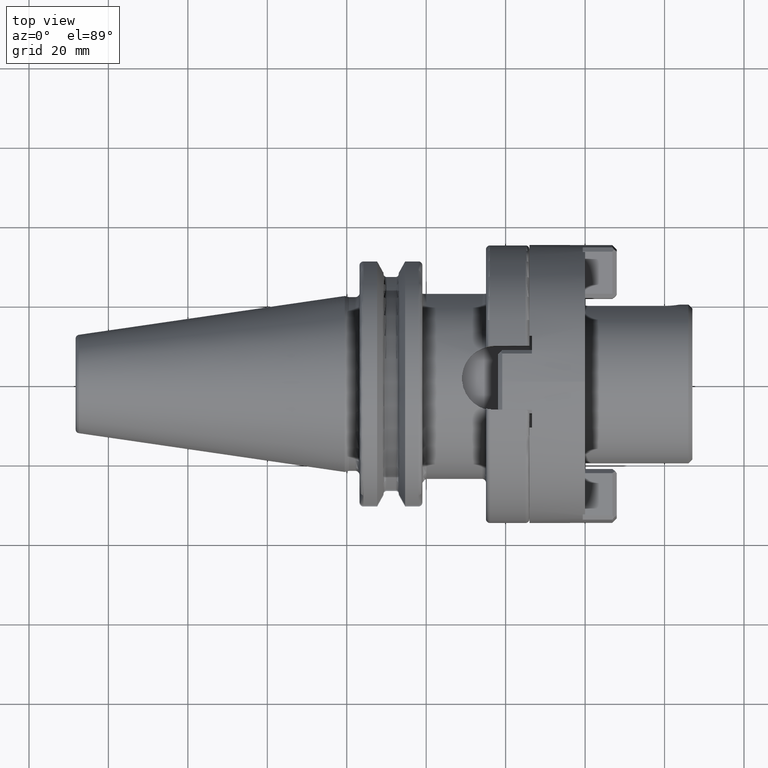
[diagram: clean part render]
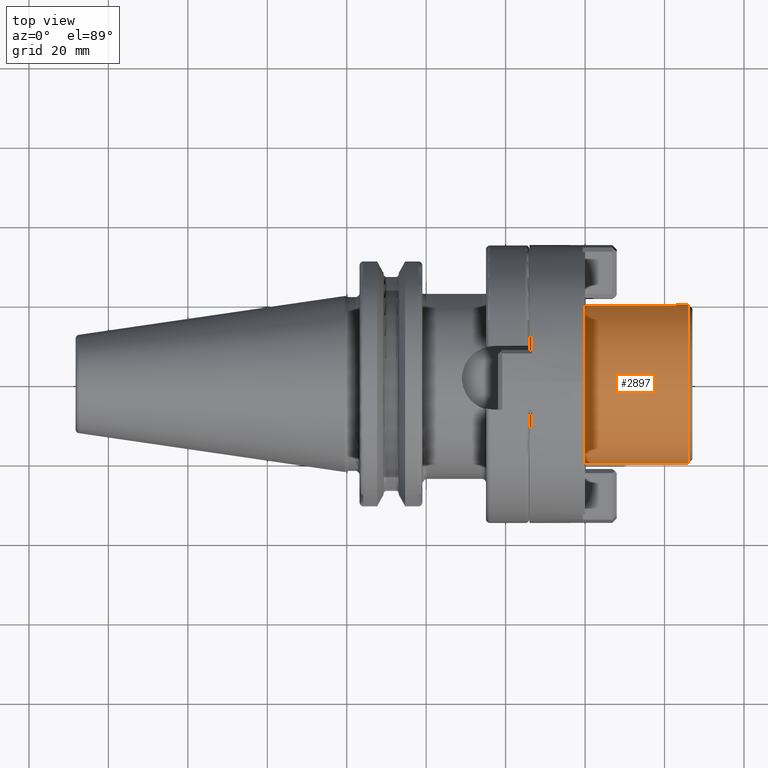
[diagram: same view with one face highlighted and labeled with its STEP entity id]
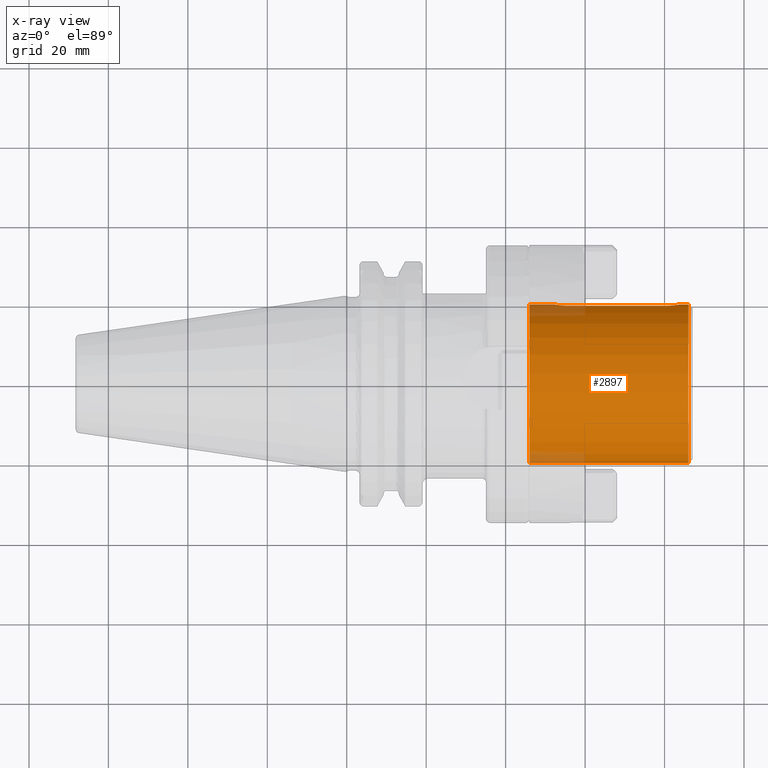
[diagram: x-ray of the same camera — body ghosted, the highlighted face saturated]
A machine part, top view. The second image highlights one B-rep face of the part: STEP entity #2897.
The next image is the same camera in x-ray: the body ghosted, the highlighted face saturated — about 5% of this face is hidden behind the body in this view.
In plain terms, the highlighted cylindrical surface (partial cylindrical patch) has radius 20 mm, axis along (1, 0, 0).
Its self-contained STEP definition (entity closure, byte-faithful):
#676=CARTESIAN_POINT('',(4.6E1,0.E0,0.E0));
#677=DIRECTION('',(1.E0,0.E0,0.E0));
#678=DIRECTION('',(0.E0,1.E0,0.E0));
#679=AXIS2_PLACEMENT_3D('',#676,#677,#678);
#710=CARTESIAN_POINT('',(5.2E1,2.E1,0.E0));
#711=CARTESIAN_POINT('',(5.2E1,2.E1,2.332612092060E-1));
#712=CARTESIAN_POINT('',(5.203969359434E1,1.999199429443E1,6.932150350380E-1));
#713=CARTESIAN_POINT('',(5.222367966138E1,1.995602477411E1,1.380015279400E0));
#714=CARTESIAN_POINT('',(5.251865844221E1,1.990175833422E1,2.010833424175E0));
#715=CARTESIAN_POINT('',(5.292404391083E1,1.983422173433E1,2.588710195262E0));
#716=CARTESIAN_POINT('',(5.341488678905E1,1.976331754903E1,3.078834361057E0));
#717=CARTESIAN_POINT('',(5.399142549837E1,1.969551745097E1,3.482629222908E0));
#718=CARTESIAN_POINT('',(5.462242444950E1,1.964060035928E1,3.776997837250E0));
#719=CARTESIAN_POINT('',(5.530378331717E1,1.960423686747E1,3.959595406031E0));
#720=CARTESIAN_POINT('',(5.576525841308E1,1.959591794227E1,4.E0));
#721=CARTESIAN_POINT('',(5.6E1,1.959591794227E1,4.E0));
#723=DIRECTION('',(1.E0,0.E0,0.E0));
#724=VECTOR('',#723,2.4E1);
#725=CARTESIAN_POINT('',(5.6E1,1.959591794227E1,4.E0));
#726=LINE('',#725,#724);
#727=CARTESIAN_POINT('',(8.E1,1.959591794227E1,4.E0));
#728=CARTESIAN_POINT('',(8.023482019323E1,1.959591794227E1,4.E0));
#729=CARTESIAN_POINT('',(8.069646173838E1,1.960423642681E1,3.959601599604E0));
#730=CARTESIAN_POINT('',(8.137869536913E1,1.964067612774E1,3.776606685910E0));
#731=CARTESIAN_POINT('',(8.200940143610E1,1.969560187580E1,3.482164522748E0));
#732=CARTESIAN_POINT('',(8.258639000230E1,1.976348326237E1,3.077790965165E0));
#733=CARTESIAN_POINT('',(8.307673294187E1,1.983434758689E1,2.587716427516E0));
#734=CARTESIAN_POINT('',(8.348164187550E1,1.990181244784E1,2.010278230871E0));
#735=CARTESIAN_POINT('',(8.377638870792E1,1.995603861698E1,1.379689240196E0));
#736=CARTESIAN_POINT('',(8.396015638509E1,1.999196462113E1,6.939124874021E-1));
#737=CARTESIAN_POINT('',(8.4E1,2.E1,2.335822306915E-1));
#738=CARTESIAN_POINT('',(8.4E1,2.E1,3.144154927359E-14));
#740=CARTESIAN_POINT('',(8.6E1,0.E0,0.E0));
#741=DIRECTION('',(-1.E0,0.E0,0.E0));
#742=DIRECTION('',(0.E0,-1.E0,0.E0));
#743=AXIS2_PLACEMENT_3D('',#740,#741,#742);
#762=DIRECTION('',(-1.E0,0.E0,0.E0));
#763=VECTOR('',#762,6.E0);
#764=CARTESIAN_POINT('',(5.2E1,2.E1,0.E0));
#765=LINE('',#764,#763);
#766=DIRECTION('',(-1.E0,-1.440447761068E-12,-8.509783561617E-12));
#767=VECTOR('',#766,4.000000000006E1);
#768=CARTESIAN_POINT('',(8.600000000006E1,-1.999999999994E1,
3.403897096028E-10));
#769=LINE('',#768,#767);
#775=DIRECTION('',(-1.E0,2.880895522056E-11,1.702097715098E-10));
#776=VECTOR('',#775,2.000000000058E0);
#777=CARTESIAN_POINT('',(8.600000000006E1,1.999999999994E1,
-3.403881014801E-10));
#778=LINE('',#777,#776);
#2038=CARTESIAN_POINT('',(4.6E1,2.E1,0.E0));
#2039=CARTESIAN_POINT('',(4.6E1,-2.E1,0.E0));
#2040=VERTEX_POINT('',#2038);
#2041=VERTEX_POINT('',#2039);
#2042=CARTESIAN_POINT('',(8.6E1,2.E1,0.E0));
#2043=CARTESIAN_POINT('',(8.6E1,-2.E1,0.E0));
#2044=VERTEX_POINT('',#2042);
#2045=VERTEX_POINT('',#2043);
#2086=VERTEX_POINT('',#710);
#2087=VERTEX_POINT('',#721);
#2088=CARTESIAN_POINT('',(8.E1,1.959591794227E1,4.E0));
#2089=VERTEX_POINT('',#2088);
#2090=VERTEX_POINT('',#738);
#2875=CARTESIAN_POINT('',(1.56525E1,0.E0,0.E0));
#2876=DIRECTION('',(1.E0,0.E0,0.E0));
#2877=DIRECTION('',(0.E0,-1.E0,0.E0));
#2878=AXIS2_PLACEMENT_3D('',#2875,#2876,#2877);
#2879=CYLINDRICAL_SURFACE('',#2878,2.E1);
#2881=ORIENTED_EDGE('',*,*,#2880,.T.);
#2883=ORIENTED_EDGE('',*,*,#2882,.T.);
#2885=ORIENTED_EDGE('',*,*,#2884,.T.);
#2887=ORIENTED_EDGE('',*,*,#2886,.F.);
#2889=ORIENTED_EDGE('',*,*,#2888,.F.);
#2891=ORIENTED_EDGE('',*,*,#2890,.T.);
#2892=ORIENTED_EDGE('',*,*,#2868,.F.);
#2894=ORIENTED_EDGE('',*,*,#2893,.F.);
#2895=EDGE_LOOP('',(#2881,#2883,#2885,#2887,#2889,#2891,#2892,#2894));
#2896=FACE_OUTER_BOUND('',#2895,.F.);
#2897=ADVANCED_FACE('',(#2896),#2879,.T.);
#680=CIRCLE('',#679,2.E1);
#722=B_SPLINE_CURVE_WITH_KNOTS('',3,(#710,#711,#712,#713,#714,#715,#716,#717,
#718,#719,#720,#721),.UNSPECIFIED.,.F.,.F.,(4,1,1,1,1,1,1,1,1,4),(0.E0,
1.111111111111E-1,2.222222222222E-1,3.333333333333E-1,4.444444444444E-1,
5.555555555556E-1,6.666666666667E-1,7.777777777778E-1,8.888888888889E-1,1.E0),
.UNSPECIFIED.);
#739=B_SPLINE_CURVE_WITH_KNOTS('',3,(#727,#728,#729,#730,#731,#732,#733,#734,
#735,#736,#737,#738),.UNSPECIFIED.,.F.,.F.,(4,1,1,1,1,1,1,1,1,4),(0.E0,
1.111111111111E-1,2.222222222222E-1,3.333333333333E-1,4.444444444444E-1,
5.555555555556E-1,6.666666666667E-1,7.777777777778E-1,8.888888888889E-1,1.E0),
.UNSPECIFIED.);
#744=CIRCLE('',#743,2.E1);
#2868=EDGE_CURVE('',#2040,#2041,#680,.T.);
#2880=EDGE_CURVE('',#2086,#2087,#722,.T.);
#2882=EDGE_CURVE('',#2087,#2089,#726,.T.);
#2884=EDGE_CURVE('',#2089,#2090,#739,.T.);
#2886=EDGE_CURVE('',#2044,#2090,#778,.T.);
#2888=EDGE_CURVE('',#2045,#2044,#744,.T.);
#2890=EDGE_CURVE('',#2045,#2041,#769,.T.);
#2893=EDGE_CURVE('',#2086,#2040,#765,.T.);